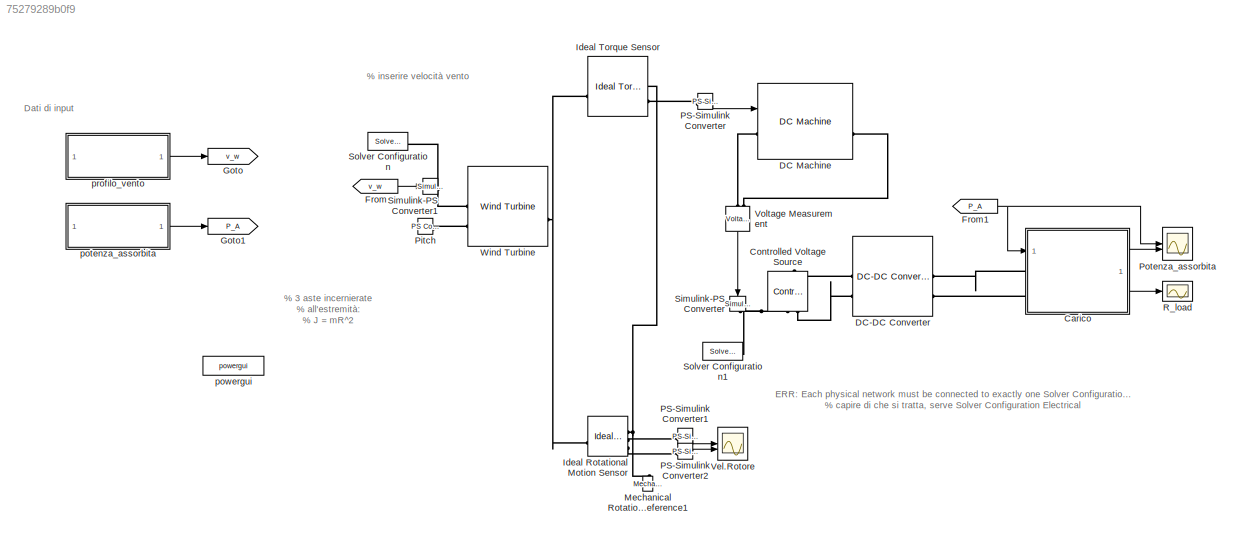
MODEL slx_75279289b0f9
KIND model
CONFIG AbsTol = auto
CONFIG EnableMultiTasking = off
CONFIG FixedStep = auto
CONFIG MaxStep = auto
CONFIG MinStep = auto
CONFIG RelTol = 1e-3
CONFIG SampleTimeConstraint = Unconstrained
CONFIG SolverName = VariableStepAuto
CONFIG StartTime = 0.0
CONFIG StopTime = 10.0
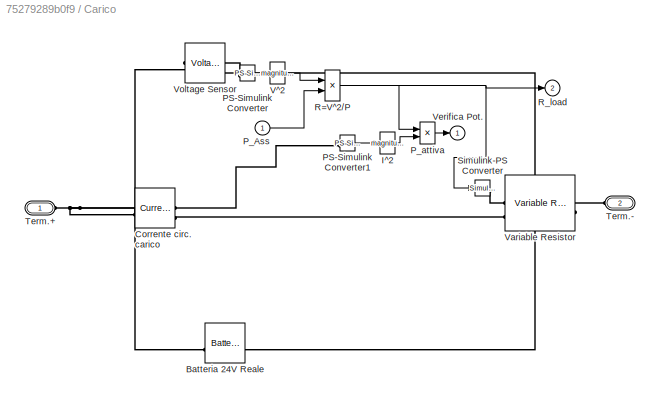
BLOCK [SubSystem] Carico
BLOCK [Reference] Carico/Batteria 24V Reale  REF=batteryecm_lib/Battery
  Commented = on
  LibrarySourceBlock = ee_lib/Sources/Battery
  SourceBlock = batteryecm_lib/Battery
  SourceType = Battery
BLOCK [Reference] Carico/Corrente circ. carico  REF=fl_lib/Electrical/Electrical Sensors/Current Sensor
  SourceBlock = fl_lib/Electrical/Electrical Sensors/Current Sensor
  SourceType = Current Sensor
BLOCK [Math] Carico/I^2
  Operator = magnitude^2
BLOCK [Reference] Carico/PS-Simulink Converter  REF=nesl_utility/PS-Simulink
Converter
  SourceBlock = nesl_utility/PS-Simulink\nConverter
  SourceType = PS-Simulink\nConverter
BLOCK [Reference] Carico/PS-Simulink Converter1  REF=nesl_utility/PS-Simulink
Converter
  SourceBlock = nesl_utility/PS-Simulink\nConverter
  SourceType = PS-Simulink\nConverter
BLOCK [Inport] Carico/P_Ass
  Unit = W
BLOCK [Product] Carico/P_attiva
BLOCK [Product] Carico/R=V^2//P
  Inputs = */
BLOCK [Outport] Carico/R_load
  Port = 2
BLOCK [Reference] Carico/Simulink-PS Converter  REF=nesl_utility/Simulink-PS
Converter
  SourceBlock = nesl_utility/Simulink-PS\nConverter
  SourceType = Simulink-PS\nConverter
BLOCK [PMIOPort] Carico/Term.+
  Side = Left
BLOCK [PMIOPort] Carico/Term.-
  Port = 2
  Side = Left
BLOCK [Math] Carico/V^2
  Operator = magnitude^2
BLOCK [Reference] Carico/Variable Resistor  REF=fl_lib/Electrical/Electrical Elements/Variable Resistor
  SourceBlock = fl_lib/Electrical/Electrical Elements/Variable Resistor
  SourceType = Variable Resistor
BLOCK [Outport] Carico/Verifica Pot.
  NameLocation = top
BLOCK [Reference] Carico/Voltage Sensor  REF=fl_lib/Electrical/Electrical Sensors/Voltage Sensor
  NameLocation = top
  SourceBlock = fl_lib/Electrical/Electrical Sensors/Voltage Sensor
  SourceType = Voltage Sensor
BLOCK [Reference] Controlled Voltage Source  REF=fl_lib/Electrical/Electrical Sources/Controlled Voltage
Source
  NameLocation = right
  SourceBlock = fl_lib/Electrical/Electrical Sources/Controlled Voltage\nSource
  SourceType = Controlled Voltage\nSource
BLOCK [Reference] DC Machine  REF=spsDCMachineLib/DC Machine
  LibrarySourceBlock = sps_lib/Electrical Machines/DC Machine
  SourceBlock = spsDCMachineLib/DC Machine
  SourceType = DC machine
BLOCK [Reference] DC-DC Converter  REF=ee_lib/Semiconductors &
Converters/Converters/DC-DC Converter
  SourceBlock = ee_lib/Semiconductors &\nConverters/Converters/DC-DC Converter
  SourceType = DC-DC Converter
BLOCK [From] From
  GotoTag = v_w
  TagVisibility = global
BLOCK [From] From1
  GotoTag = P_A
  TagVisibility = global
BLOCK [Goto] Goto
  GotoTag = v_w
  TagVisibility = global
BLOCK [Goto] Goto1
  GotoTag = P_A
  TagVisibility = global
BLOCK [Reference] Ideal Rotational Motion Sensor  REF=fl_lib/Mechanical/Mechanical Sensors/Ideal Rotational
Motion Sensor
  Commented = on
  SourceBlock = fl_lib/Mechanical/Mechanical Sensors/Ideal Rotational\nMotion Sensor
  SourceType = Ideal Rotational\nMotion Sensor
BLOCK [Reference] Ideal Torque Sensor  REF=fl_lib/Mechanical/Mechanical Sensors/Ideal Torque Sensor
  SourceBlock = fl_lib/Mechanical/Mechanical Sensors/Ideal Torque Sensor
  SourceType = Ideal Torque Sensor
BLOCK [Reference] Mechanical Rotational Reference1  REF=fl_lib/Mechanical/Rotational Elements/Mechanical
Rotational Reference
  NameLocation = right
  SourceBlock = fl_lib/Mechanical/Rotational Elements/Mechanical\nRotational Reference
  SourceType = Mechanical\nRotational Reference
BLOCK [Reference] PS-Simulink Converter  REF=nesl_utility/PS-Simulink
Converter
  SourceBlock = nesl_utility/PS-Simulink\nConverter
  SourceType = PS-Simulink\nConverter
BLOCK [Reference] PS-Simulink Converter1  REF=nesl_utility/PS-Simulink
Converter
  Commented = on
  SourceBlock = nesl_utility/PS-Simulink\nConverter
  SourceType = PS-Simulink\nConverter
BLOCK [Reference] PS-Simulink Converter2  REF=nesl_utility/PS-Simulink
Converter
  Commented = on
  SourceBlock = nesl_utility/PS-Simulink\nConverter
  SourceType = PS-Simulink\nConverter
BLOCK [Reference] Pitch  REF=fl_lib/Physical Signals/Sources/PS Constant
  SourceBlock = fl_lib/Physical Signals/Sources/PS Constant
  SourceType = PS Constant
BLOCK [Scope] Potenza_assorbita
  Floating = off
  NumInputPorts = 2
  ScopeSpecificationString = Simulink.scopes.TimeScopeBlockCfg('CurrentConfiguration', extmgr.ConfigurationSet(extmgr.Configuration('Core','General UI',true),extmgr.Configuration('Core','Source UI',true),extmgr.Configuration('Sources','WiredSimulink',true,'DataLoggingVariableName','ScopeData2'),extmgr.Configuration('Visuals','Time Domain',true,'SerializedDisplays',{struct('MinYLimReal','-10','MaxYLimReal','10','YLabelReal',''...<+878ch>
BLOCK [Scope] R_load
  Floating = off
  NumInputPorts = 1
  ScopeSpecificationString = Simulink.scopes.TimeScopeBlockCfg('CurrentConfiguration', extmgr.ConfigurationSet(extmgr.Configuration('Core','General UI',true),extmgr.Configuration('Core','Source UI',true),extmgr.Configuration('Sources','WiredSimulink',true,'DataLoggingVariableName','ScopeData1'),extmgr.Configuration('Visuals','Time Domain',true,'SerializedDisplays',{struct('MinYLimReal','0.00046','MaxYLimReal','0.00066','YLabe...<+1475ch>
BLOCK [Reference] Simulink-PS Converter  REF=nesl_utility/Simulink-PS
Converter
  NameLocation = left
  SourceBlock = nesl_utility/Simulink-PS\nConverter
  SourceType = Simulink-PS\nConverter
BLOCK [Reference] Simulink-PS Converter1  REF=nesl_utility/Simulink-PS
Converter
  SourceBlock = nesl_utility/Simulink-PS\nConverter
  SourceType = Simulink-PS\nConverter
BLOCK [Reference] Solver Configuration  REF=nesl_utility/Solver
Configuration
  SourceBlock = nesl_utility/Solver\nConfiguration
  SourceType = Solver\nConfiguration
BLOCK [Reference] Solver Configuration1  REF=nesl_utility/Solver
Configuration
  SourceBlock = nesl_utility/Solver\nConfiguration
  SourceType = Solver\nConfiguration
BLOCK [Scope] Vel.Rotore
  Commented = on
  Floating = off
  NumInputPorts = 2
  ScopeSpecificationString = Simulink.scopes.TimeScopeBlockCfg('CurrentConfiguration', extmgr.ConfigurationSet(extmgr.Configuration('Core','General UI',true),extmgr.Configuration('Core','Source UI',true),extmgr.Configuration('Sources','WiredSimulink',true),extmgr.Configuration('Visuals','Time Domain',true,'SerializedDisplays',{struct('MinYLimReal','-10.00000','MaxYLimReal','10.00000','YLabelReal','','MinYLimMag','0.00000','Ma...<+1444ch>
BLOCK [Reference] Voltage Measurement  REF=spsVoltageMeasurementLib/Voltage Measurement
  LibrarySourceBlock = sps_lib/Sensors and Measurements/Voltage Measurement
  NameLocation = left
  SourceBlock = spsVoltageMeasurementLib/Voltage Measurement
  SourceType = Voltage Measurement
  UserDataPersistent = on
BLOCK [Reference] Wind Turbine  REF=sdl_lib/Engines & Motors/Wind Turbine
  SourceBlock = sdl_lib/Engines & Motors/Wind Turbine
  SourceType = Wind Turbine
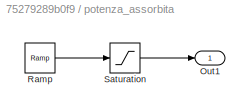
BLOCK [SubSystem] potenza_assorbita
BLOCK [Outport] potenza_assorbita/Out1
BLOCK [Reference] potenza_assorbita/Ramp  REF=simulink/Sources/Ramp
  SourceBlock = simulink/Sources/Ramp
  SourceType = Ramp
BLOCK [Saturate] potenza_assorbita/Saturation
  LowerLimit = 0
  UpperLimit = 1000
BLOCK [Reference] powergui  REF=sps_lib/powergui
  LibrarySourceBlock = sps_lib/powergui
  Priority = 1
  SourceBlock = sps_lib/powergui
  SourceType = PSB option menu block
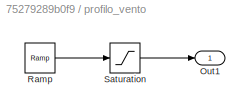
BLOCK [SubSystem] profilo_vento
BLOCK [Outport] profilo_vento/Out1
BLOCK [Reference] profilo_vento/Ramp  REF=simulink/Sources/Ramp
  SourceBlock = simulink/Sources/Ramp
  SourceType = Ramp
BLOCK [Saturate] profilo_vento/Saturation
  LowerLimit = 0
  UpperLimit = 15
ANNOTATION (root): % 3 aste incernierate % all'estremità: % J = mR^2
ANNOTATION (root): % inserire velocità vento
ANNOTATION (root): Dati di input
ANNOTATION (root): ERR: Each physical network must be connected to exactly one Solver Configuration block. % capire di che si tratta, serve Solver Configuration Electrical
LINE Carico/I^2:1 -> Carico/P_attiva:2
LINE Carico/PS-Simulink Converter1:1 -> Carico/I^2:1
LINE Carico/PS-Simulink Converter:1 -> Carico/V^2:1
LINE Carico/P_Ass:1 -> Carico/R=V^2//P:2
LINE Carico/P_attiva:1 -> Carico/Verifica Pot.:1
NET Carico/R=V^2//P:1 -> Carico/P_attiva:1, Carico/R_load:1, Carico/Simulink-PS Converter:1
LINE Carico/V^2:1 -> Carico/R=V^2//P:1
LINE Carico:1 -> Potenza_assorbita:2
LINE Carico:2 -> R_load:1
NET From1:1 -> Carico:1, Potenza_assorbita:1
LINE From:1 -> Simulink-PS Converter1:1
LINE PS-Simulink Converter1:1 -> Vel.Rotore:1
LINE PS-Simulink Converter2:1 -> Vel.Rotore:2
LINE PS-Simulink Converter:1 -> DC Machine:1
LINE Voltage Measurement:1 -> Simulink-PS Converter:1
LINE potenza_assorbita/Ramp:1 -> potenza_assorbita/Saturation:1
LINE potenza_assorbita/Saturation:1 -> potenza_assorbita/Out1:1
LINE potenza_assorbita:1 -> Goto1:1
LINE profilo_vento/Ramp:1 -> profilo_vento/Saturation:1
LINE profilo_vento/Saturation:1 -> profilo_vento/Out1:1
LINE profilo_vento:1 -> Goto:1
PNET net1: Carico/Batteria 24V Reale:LConn1 -- Carico/Corrente circ. carico:LConn1 -- Carico/Term.+:RConn1 -- Carico/Voltage Sensor:LConn1
PNET net2: Carico/Batteria 24V Reale:RConn1 -- Carico/Term.-:RConn1 -- Carico/Variable Resistor:RConn1 -- Carico/Voltage Sensor:RConn2
PLINE Carico/Corrente circ. carico:RConn1 -- Carico/PS-Simulink Converter1:LConn1
PLINE Carico/Corrente circ. carico:RConn2 -- Carico/Variable Resistor:LConn2
PLINE Carico/PS-Simulink Converter:LConn1 -- Carico/Voltage Sensor:RConn1
PLINE Carico/Simulink-PS Converter:RConn1 -- Carico/Variable Resistor:LConn1
PLINE Carico:LConn1 -- DC-DC Converter:RConn1
PLINE Carico:LConn2 -- DC-DC Converter:RConn2
PLINE Controlled Voltage Source:LConn1 -- DC-DC Converter:LConn1
PNET net3: Controlled Voltage Source:RConn1 -- Simulink-PS Converter:RConn1 -- Solver Configuration1:RConn1
PLINE Controlled Voltage Source:RConn2 -- DC-DC Converter:LConn2
PLINE DC Machine:LConn1 -- Voltage Measurement:LConn1
PLINE DC Machine:RConn1 -- Voltage Measurement:LConn2
PNET net4: Ideal Rotational Motion Sensor:LConn1 -- Ideal Torque Sensor:LConn1 -- Wind Turbine:RConn1
PNET net5: Ideal Rotational Motion Sensor:RConn1 -- Ideal Torque Sensor:RConn1 -- Mechanical Rotational Reference1:LConn1
PLINE Ideal Rotational Motion Sensor:RConn2 -- PS-Simulink Converter1:LConn1
PLINE Ideal Rotational Motion Sensor:RConn3 -- PS-Simulink Converter2:LConn1
PLINE Ideal Torque Sensor:RConn2 -- PS-Simulink Converter:LConn1
PLINE Pitch:RConn1 -- Wind Turbine:LConn2
PNET net6: Simulink-PS Converter1:RConn1 -- Solver Configuration:RConn1 -- Wind Turbine:LConn1
note: NET lines group one-source signal fan-out (src -> all destinations, sorted); 1:1 wires keep LINE; PNET lines group multi-terminal physical nets as a canonical sorted terminal list (undirected conserving connections); 2-terminal nets keep the pairwise PLINE form
